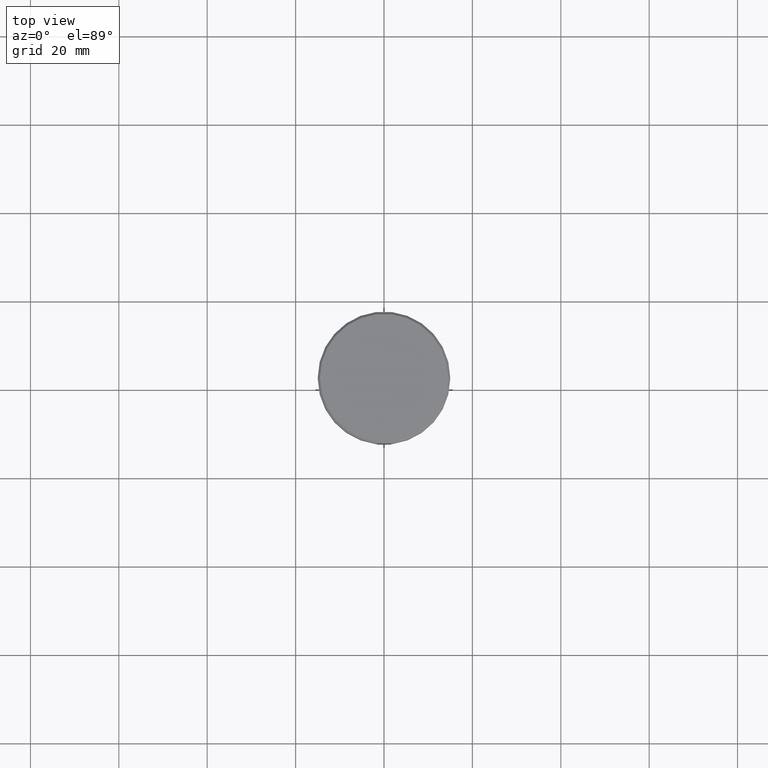
[diagram: clean part render]
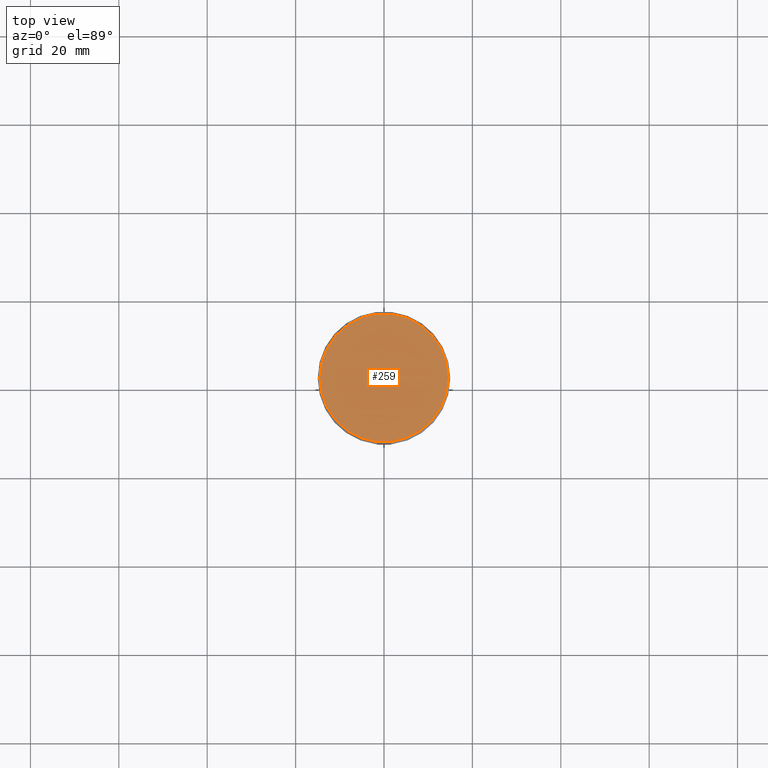
[diagram: same view with one face highlighted and labeled with its STEP entity id]
A machine part, top view. The second image highlights one B-rep face of the part: STEP entity #259.
In plain terms, the highlighted planar face has unit normal (0, -0, 1).
Its self-contained STEP definition (entity closure, byte-faithful):
#49 = AXIS2_PLACEMENT_3D ( 'NONE', #62, #522, #568 ) ;
#62 = CARTESIAN_POINT ( 'NONE',  ( 0.000000000000000000, 0.000000000000000000, 0.000000000000000000 ) ) ;
#80 = AXIS2_PLACEMENT_3D ( 'NONE', #94, #144, #330 ) ;
#94 = CARTESIAN_POINT ( 'NONE',  ( 0.000000000000000000, 0.000000000000000000, 0.000000000000000000 ) ) ;
#113 = AXIS2_PLACEMENT_3D ( 'NONE', #454, #119, #129 ) ;
#119 = DIRECTION ( 'NONE',  ( -0.000000000000000000, -0.000000000000000000, 1.000000000000000000 ) ) ;
#127 = EDGE_CURVE ( 'NONE', #372, #243, #584, .T. ) ;
#129 = DIRECTION ( 'NONE',  ( 1.000000000000000000, 0.000000000000000000, 0.000000000000000000 ) ) ;
#144 = DIRECTION ( 'NONE',  ( 0.000000000000000000, -0.000000000000000000, 1.000000000000000000 ) ) ;
#148 = CARTESIAN_POINT ( 'NONE',  ( -14.49999999999999112, 0.000000000000000000, 0.000000000000000000 ) ) ;
#149 = ORIENTED_EDGE ( 'NONE', *, *, #127, .T. ) ;
#243 = VERTEX_POINT ( 'NONE', #371 ) ;
#259 = ADVANCED_FACE ( 'NONE', ( #560 ), #275, .T. ) ;
#275 = PLANE ( 'NONE',  #80 ) ;
#304 = EDGE_LOOP ( 'NONE', ( #149, #336 ) ) ;
#330 = DIRECTION ( 'NONE',  ( 1.000000000000000000, 0.000000000000000000, 0.000000000000000000 ) ) ;
#336 = ORIENTED_EDGE ( 'NONE', *, *, #383, .T. ) ;
#371 = CARTESIAN_POINT ( 'NONE',  ( 14.49999999999999112, 1.806354028742345013E-15, 0.000000000000000000 ) ) ;
#372 = VERTEX_POINT ( 'NONE', #148 ) ;
#383 = EDGE_CURVE ( 'NONE', #243, #372, #575, .T. ) ;
#454 = CARTESIAN_POINT ( 'NONE',  ( 0.000000000000000000, 0.000000000000000000, 0.000000000000000000 ) ) ;
#522 = DIRECTION ( 'NONE',  ( -0.000000000000000000, -0.000000000000000000, 1.000000000000000000 ) ) ;
#560 = FACE_OUTER_BOUND ( 'NONE', #304, .T. ) ;
#568 = DIRECTION ( 'NONE',  ( 1.000000000000000000, 0.000000000000000000, 0.000000000000000000 ) ) ;
#575 = CIRCLE ( 'NONE', #49, 14.49999999999999112 ) ;
#584 = CIRCLE ( 'NONE', #113, 14.49999999999999112 ) ;